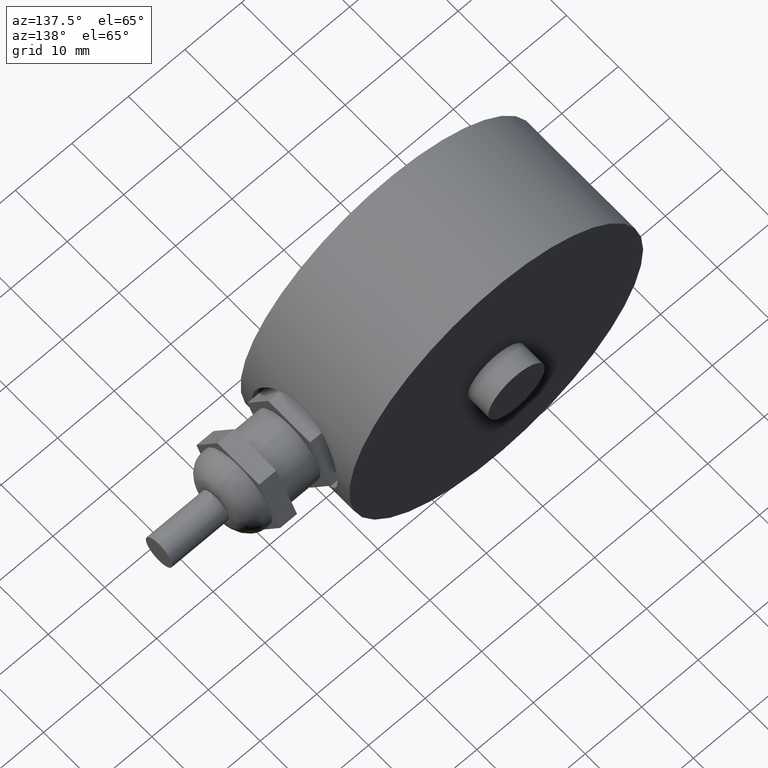
[diagram: clean part render]
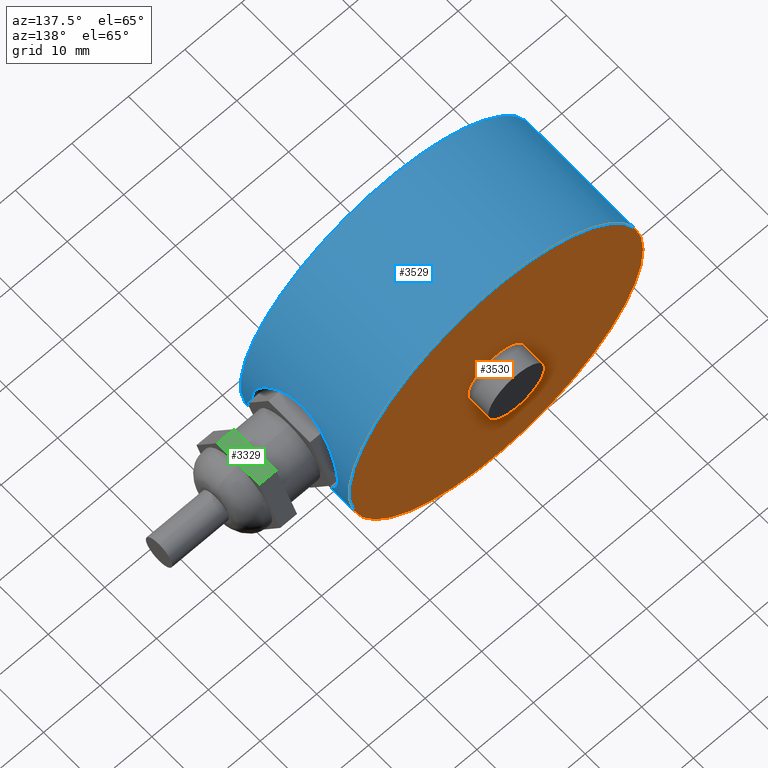
[diagram: same view with three faces highlighted in distinct colors, each labeled with its STEP entity id]
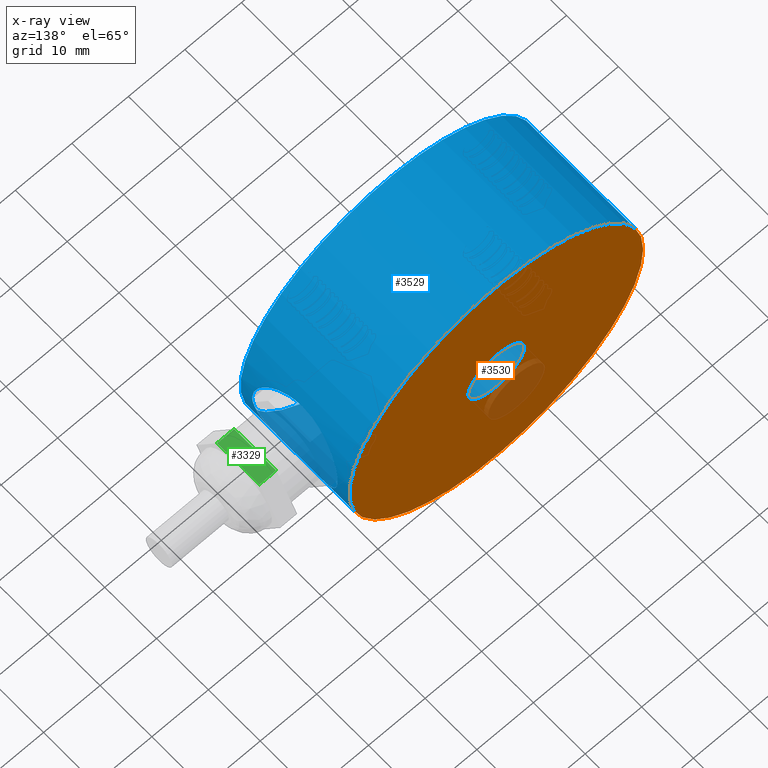
[diagram: x-ray of the same camera — body ghosted, the three highlighted faces saturated]
A machine part, auxiliary view with three faces highlighted in distinct colors.
The next image is the same camera in x-ray (body ghosted, the three faces saturated) — at least one of them is partly hidden behind the body in this view.
Their STEP definitions:

[orange] entity #3530 — the highlighted planar face has unit normal (0, 1, 0).
#319=FACE_BOUND('',#783,.T.);
#349=PLANE('',#3795);
#562=FACE_OUTER_BOUND('',#782,.T.);
#782=EDGE_LOOP('',(#3127));
#783=EDGE_LOOP('',(#3128,#3129));
#1240=CIRCLE('',#3790,5.);
#1241=CIRCLE('',#3791,5.);
#1242=CIRCLE('',#3793,26.);
#1568=VERTEX_POINT('',#14007);
#1569=VERTEX_POINT('',#14008);
#1570=VERTEX_POINT('',#14013);
#2091=EDGE_CURVE('',#1568,#1569,#1240,.T.);
#2092=EDGE_CURVE('',#1569,#1568,#1241,.T.);
#2094=EDGE_CURVE('',#1570,#1570,#1242,.T.);
#3127=ORIENTED_EDGE('',*,*,#2094,.T.);
#3128=ORIENTED_EDGE('',*,*,#2091,.T.);
#3129=ORIENTED_EDGE('',*,*,#2092,.T.);
#3530=ADVANCED_FACE('',(#562,#319),#349,.T.);
#3790=AXIS2_PLACEMENT_3D('',#14009,#4489,#4490);
#3791=AXIS2_PLACEMENT_3D('',#14010,#4491,#4492);
#3793=AXIS2_PLACEMENT_3D('',#14014,#4496,#4497);
#3795=AXIS2_PLACEMENT_3D('',#14018,#4501,#4502);
#4489=DIRECTION('center_axis',(0.,-1.,0.));
#4490=DIRECTION('ref_axis',(1.,0.,0.));
#4491=DIRECTION('center_axis',(0.,-1.,0.));
#4492=DIRECTION('ref_axis',(1.,0.,0.));
#4496=DIRECTION('center_axis',(0.,1.,0.));
#4497=DIRECTION('ref_axis',(1.,0.,0.));
#4501=DIRECTION('center_axis',(0.,1.,0.));
#4502=DIRECTION('ref_axis',(1.,0.,0.));
#14007=CARTESIAN_POINT('',(5.,21.,0.));
#14008=CARTESIAN_POINT('',(-5.,21.,-6.12323399573677E-16));
#14009=CARTESIAN_POINT('Origin',(0.,21.,0.));
#14010=CARTESIAN_POINT('Origin',(0.,21.,0.));
#14013=CARTESIAN_POINT('',(-26.,21.,3.18408167778312E-15));
#14014=CARTESIAN_POINT('Origin',(0.,21.,0.));
#14018=CARTESIAN_POINT('Origin',(0.,21.,0.));

[blue] entity #3529 — the highlighted cylindrical surface (bore or boss wall) has radius 26 mm, axis along (0, 1, 0).
#273=B_SPLINE_CURVE_WITH_KNOTS('',3,(#9118,#9119,#9120,#9121,#9122,#9123,
#9124,#9125,#9126,#9127,#9128,#9129,#9130,#9131,#9132,#9133,#9134,#9135),
 .UNSPECIFIED.,.F.,.F.,(4,2,2,2,2,2,2,2,4),(1.25247365064363,1.56553305341206,
1.8785924561805,2.19176987873388,2.50494730128725,2.81812472384063,3.13130214639401,
3.44436154916245,3.75742095193088),.UNSPECIFIED.);
#274=B_SPLINE_CURVE_WITH_KNOTS('',3,(#9137,#9138,#9139,#9140,#9141,#9142,
#9143,#9144,#9145,#9146),.UNSPECIFIED.,.F.,.F.,(4,2,2,2,4),(5.00989460257451,
5.32307202512789,5.63624944768127,5.9493088504497,6.26236825321814),
 .UNSPECIFIED.);
#275=B_SPLINE_CURVE_WITH_KNOTS('',3,(#9150,#9151,#9152,#9153,#9154,#9155,
#9156,#9157,#9158,#9159),.UNSPECIFIED.,.F.,.F.,(4,2,2,2,4),(3.75742095193088,
4.07048035469932,4.38353975746775,4.69671718002113,5.00989460257451),
 .UNSPECIFIED.);
#318=FACE_BOUND('',#781,.T.);
#561=FACE_OUTER_BOUND('',#780,.T.);
#780=EDGE_LOOP('',(#3120,#3121,#3122,#3123));
#781=EDGE_LOOP('',(#3124,#3125,#3126));
#993=LINE('',#14016,#1198);
#1198=VECTOR('',#4498,26.);
#1242=CIRCLE('',#3793,26.);
#1243=CIRCLE('',#3794,26.);
#1554=VERTEX_POINT('',#9116);
#1555=VERTEX_POINT('',#9117);
#1556=VERTEX_POINT('',#9136);
#1570=VERTEX_POINT('',#14013);
#1571=VERTEX_POINT('',#14015);
#2044=EDGE_CURVE('',#1554,#1555,#273,.T.);
#2045=EDGE_CURVE('',#1556,#1554,#274,.T.);
#2048=EDGE_CURVE('',#1555,#1556,#275,.T.);
#2094=EDGE_CURVE('',#1570,#1570,#1242,.T.);
#2095=EDGE_CURVE('',#1570,#1571,#993,.T.);
#2096=EDGE_CURVE('',#1571,#1571,#1243,.T.);
#3120=ORIENTED_EDGE('',*,*,#2094,.F.);
#3121=ORIENTED_EDGE('',*,*,#2095,.T.);
#3122=ORIENTED_EDGE('',*,*,#2096,.T.);
#3123=ORIENTED_EDGE('',*,*,#2095,.F.);
#3124=ORIENTED_EDGE('',*,*,#2044,.T.);
#3125=ORIENTED_EDGE('',*,*,#2048,.T.);
#3126=ORIENTED_EDGE('',*,*,#2045,.T.);
#3318=CYLINDRICAL_SURFACE('',#3792,26.);
#3529=ADVANCED_FACE('',(#561,#318),#3318,.T.);
#3792=AXIS2_PLACEMENT_3D('',#14012,#4494,#4495);
#3793=AXIS2_PLACEMENT_3D('',#14014,#4496,#4497);
#3794=AXIS2_PLACEMENT_3D('',#14017,#4499,#4500);
#4494=DIRECTION('center_axis',(0.,1.,0.));
#4495=DIRECTION('ref_axis',(1.,0.,0.));
#4496=DIRECTION('center_axis',(0.,1.,0.));
#4497=DIRECTION('ref_axis',(1.,0.,0.));
#4498=DIRECTION('',(0.,-1.,0.));
#4499=DIRECTION('center_axis',(0.,1.,0.));
#4500=DIRECTION('ref_axis',(1.,0.,0.));
#9116=CARTESIAN_POINT('',(26.,18.75,-1.84889274661175E-31));
#9117=CARTESIAN_POINT('',(26.,2.25,-1.84889274661175E-31));
#9118=CARTESIAN_POINT('Ctrl Pts',(26.,18.75,-8.32667268468867E-16));
#9119=CARTESIAN_POINT('Ctrl Pts',(26.,18.75,-1.04353134256145));
#9120=CARTESIAN_POINT('Ctrl Pts',(25.9309882242102,18.5399816213907,-2.15179801656774));
#9121=CARTESIAN_POINT('Ctrl Pts',(25.6817781700475,17.695754490403,-4.18242215104445));
#9122=CARTESIAN_POINT('Ctrl Pts',(25.5047863445344,17.0619302323496,-5.10533165722839));
#9123=CARTESIAN_POINT('Ctrl Pts',(25.1693549236414,15.605057096795,-6.56220479278301));
#9124=CARTESIAN_POINT('Ctrl Pts',(24.9882983036768,14.6822580465964,-7.19581705882734));
#9125=CARTESIAN_POINT('Ctrl Pts',(24.7296393559299,12.6520394775548,-8.03988689194418));
#9126=CARTESIAN_POINT('Ctrl Pts',(24.6563886244519,11.5439247418446,-8.25));
#9127=CARTESIAN_POINT('Ctrl Pts',(24.6563886244519,9.45607525815541,-8.25));
#9128=CARTESIAN_POINT('Ctrl Pts',(24.7296393559299,8.3479605224452,-8.03988689194418));
#9129=CARTESIAN_POINT('Ctrl Pts',(24.9882983036768,6.31774195340365,-7.19581705882734));
#9130=CARTESIAN_POINT('Ctrl Pts',(25.1693549236414,5.39494290320497,-6.56220479278301));
#9131=CARTESIAN_POINT('Ctrl Pts',(25.5047863445344,3.93806976765035,-5.10533165722839));
#9132=CARTESIAN_POINT('Ctrl Pts',(25.6817781700475,3.30424550959699,-4.18242215104445));
#9133=CARTESIAN_POINT('Ctrl Pts',(25.9309882242102,2.46001837860928,-2.15179801656774));
#9134=CARTESIAN_POINT('Ctrl Pts',(26.,2.25,-1.04353134256145));
#9135=CARTESIAN_POINT('Ctrl Pts',(26.,2.25,-1.11022302462516E-15));
#9136=CARTESIAN_POINT('',(24.6563886244519,10.5,8.25));
#9137=CARTESIAN_POINT('Ctrl Pts',(24.6563886244519,10.5,8.25));
#9138=CARTESIAN_POINT('Ctrl Pts',(24.6563886244519,11.5439247418446,8.25));
#9139=CARTESIAN_POINT('Ctrl Pts',(24.7296393559299,12.6520394775548,8.03988689194418));
#9140=CARTESIAN_POINT('Ctrl Pts',(24.9882983036768,14.6822580465963,7.19581705882734));
#9141=CARTESIAN_POINT('Ctrl Pts',(25.1693549236414,15.605057096795,6.56220479278301));
#9142=CARTESIAN_POINT('Ctrl Pts',(25.5047863445344,17.0619302323496,5.10533165722839));
#9143=CARTESIAN_POINT('Ctrl Pts',(25.6817781700475,17.695754490403,4.18242215104445));
#9144=CARTESIAN_POINT('Ctrl Pts',(25.9309882242102,18.5399816213907,2.15179801656774));
#9145=CARTESIAN_POINT('Ctrl Pts',(26.,18.75,1.04353134256145));
#9146=CARTESIAN_POINT('Ctrl Pts',(26.,18.75,-5.55111512312578E-16));
#9150=CARTESIAN_POINT('Ctrl Pts',(26.,2.25,-1.11022302462516E-15));
#9151=CARTESIAN_POINT('Ctrl Pts',(26.,2.25,1.04353134256145));
#9152=CARTESIAN_POINT('Ctrl Pts',(25.9309882242102,2.46001837860928,2.15179801656774));
#9153=CARTESIAN_POINT('Ctrl Pts',(25.6817781700475,3.30424550959699,4.18242215104445));
#9154=CARTESIAN_POINT('Ctrl Pts',(25.5047863445344,3.93806976765035,5.10533165722839));
#9155=CARTESIAN_POINT('Ctrl Pts',(25.1693549236414,5.39494290320497,6.56220479278301));
#9156=CARTESIAN_POINT('Ctrl Pts',(24.9882983036768,6.31774195340365,7.19581705882734));
#9157=CARTESIAN_POINT('Ctrl Pts',(24.7296393559299,8.34796052244519,8.03988689194418));
#9158=CARTESIAN_POINT('Ctrl Pts',(24.6563886244519,9.4560752581554,8.25));
#9159=CARTESIAN_POINT('Ctrl Pts',(24.6563886244519,10.5,8.25));
#14012=CARTESIAN_POINT('Origin',(0.,0.,0.));
#14013=CARTESIAN_POINT('',(-26.,21.,3.18408167778312E-15));
#14014=CARTESIAN_POINT('Origin',(0.,21.,0.));
#14015=CARTESIAN_POINT('',(-26.,0.,3.18408167778312E-15));
#14016=CARTESIAN_POINT('',(-26.,0.,3.18408167778312E-15));
#14017=CARTESIAN_POINT('Origin',(0.,0.,0.));

[green] entity #3329 — the highlighted planar face has unit normal (0, 0, 1).
#331=PLANE('',#3566);
#361=FACE_OUTER_BOUND('',#576,.T.);
#576=EDGE_LOOP('',(#2132,#2133,#2134,#2135));
#795=LINE('',#4569,#1000);
#802=LINE('',#4584,#1007);
#803=LINE('',#4587,#1008);
#804=LINE('',#4588,#1009);
#1000=VECTOR('',#3838,10.);
#1007=VECTOR('',#3851,10.);
#1008=VECTOR('',#3854,10.);
#1009=VECTOR('',#3855,10.);
#1254=VERTEX_POINT('',#4566);
#1255=VERTEX_POINT('',#4568);
#1260=VERTEX_POINT('',#4582);
#1261=VERTEX_POINT('',#4586);
#1586=EDGE_CURVE('',#1255,#1254,#795,.T.);
#1594=EDGE_CURVE('',#1254,#1260,#802,.T.);
#1595=EDGE_CURVE('',#1261,#1260,#803,.T.);
#1596=EDGE_CURVE('',#1255,#1261,#804,.T.);
#2132=ORIENTED_EDGE('',*,*,#1586,.T.);
#2133=ORIENTED_EDGE('',*,*,#1594,.T.);
#2134=ORIENTED_EDGE('',*,*,#1595,.F.);
#2135=ORIENTED_EDGE('',*,*,#1596,.F.);
#3329=ADVANCED_FACE('',(#361),#331,.T.);
#3566=AXIS2_PLACEMENT_3D('',#4585,#3852,#3853);
#3838=DIRECTION('',(0.,-1.,4.12063432796478E-16));
#3851=DIRECTION('',(1.,0.,0.));
#3852=DIRECTION('center_axis',(0.,4.12063432796478E-16,1.));
#3853=DIRECTION('ref_axis',(0.,-1.,4.12063432796478E-16));
#3854=DIRECTION('',(0.,-1.,4.12063432796478E-16));
#3855=DIRECTION('',(1.,0.,0.));
#4566=CARTESIAN_POINT('',(9.,-4.04145188432738,7.));
#4568=CARTESIAN_POINT('',(9.,4.04145188432738,7.));
#4569=CARTESIAN_POINT('',(9.,4.04145188432738,7.));
#4582=CARTESIAN_POINT('',(12.,-4.04145188432738,7.));
#4584=CARTESIAN_POINT('',(9.,-4.04145188432738,7.));
#4585=CARTESIAN_POINT('Origin',(9.,4.04145188432738,7.));
#4586=CARTESIAN_POINT('',(12.,4.04145188432738,7.));
#4587=CARTESIAN_POINT('',(12.,4.04145188432738,7.));
#4588=CARTESIAN_POINT('',(9.,4.04145188432738,7.));